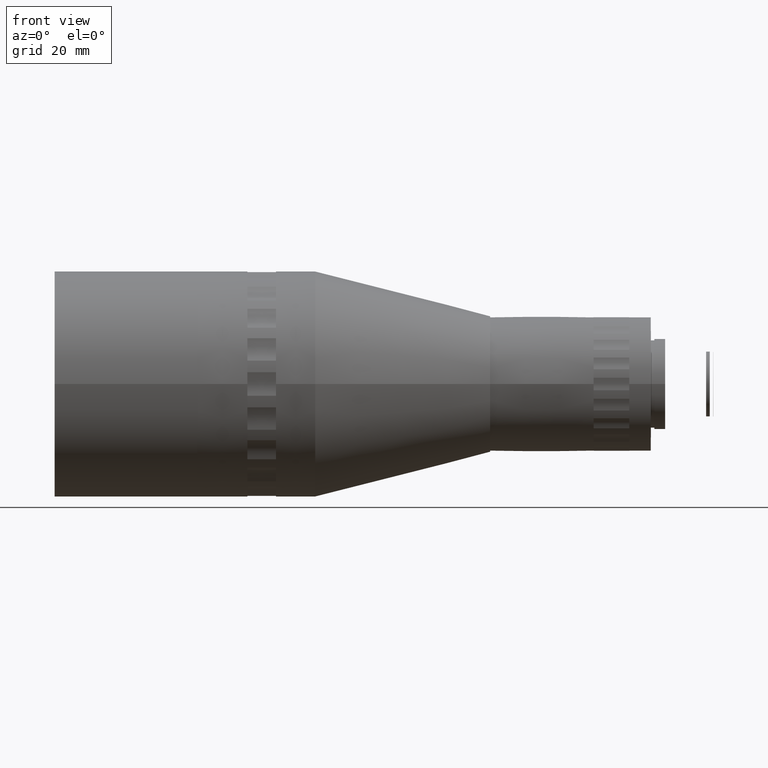
[diagram: clean part render]
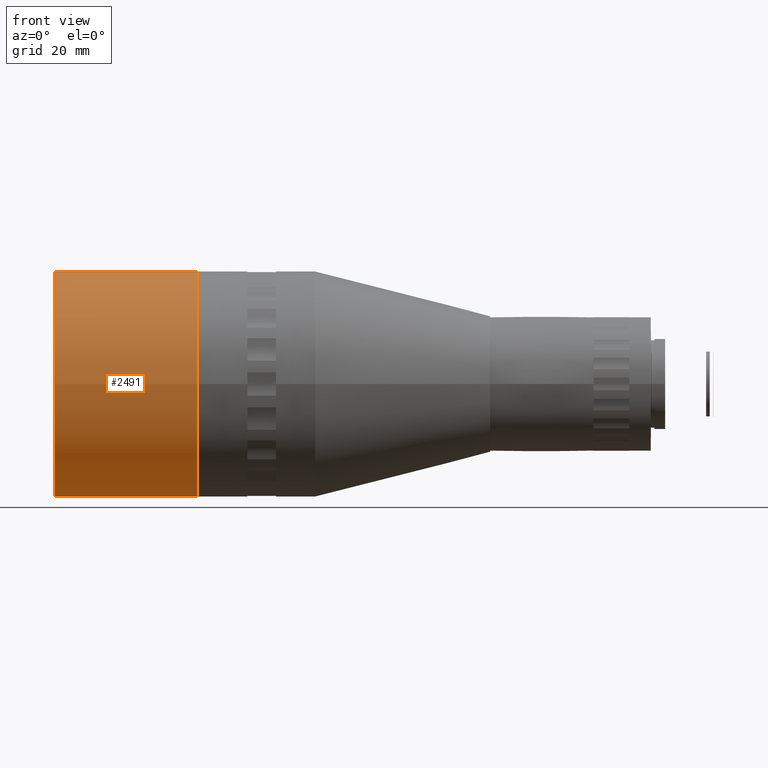
[diagram: same view with one face highlighted and labeled with its STEP entity id]
A machine part, front view. The second image highlights one B-rep face of the part: STEP entity #2491.
In plain terms, the highlighted cylindrical surface (bore or boss wall) has radius 31.5 mm, axis along (-1, -0, -0).
Its self-contained STEP definition (entity closure, byte-faithful):
#166 = ORIENTED_EDGE ( 'NONE', *, *, #3961, .F. ) ;
#196 = AXIS2_PLACEMENT_3D ( 'NONE', #4558, #1413, #2858 ) ;
#353 = DIRECTION ( 'NONE',  ( -1.000000000000000000, -1.226679102604723662E-16, -0.000000000000000000 ) ) ;
#644 = DIRECTION ( 'NONE',  ( -1.000000000000000000, -1.226679102604723662E-16, -0.000000000000000000 ) ) ;
#852 = AXIS2_PLACEMENT_3D ( 'NONE', #2689, #644, #3418 ) ;
#1161 = VERTEX_POINT ( 'NONE', #3648 ) ;
#1262 = CYLINDRICAL_SURFACE ( 'NONE', #852, 31.50000000000000000 ) ;
#1283 = EDGE_LOOP ( 'NONE', ( #1781 ) ) ;
#1413 = DIRECTION ( 'NONE',  ( -1.000000000000000000, -1.226679102604723662E-16, -0.000000000000000000 ) ) ;
#1781 = ORIENTED_EDGE ( 'NONE', *, *, #2164, .T. ) ;
#1962 = CIRCLE ( 'NONE', #2561, 31.49999999999999289 ) ;
#2164 = EDGE_CURVE ( 'NONE', #1161, #1161, #1962, .T. ) ;
#2256 = CARTESIAN_POINT ( 'NONE',  ( -59.36906378044778876, -25.78801287208300153, -0.6039616615827261281 ) ) ;
#2491 = ADVANCED_FACE ( 'NONE', ( #3440, #3813 ), #1262, .T. ) ;
#2561 = AXIS2_PLACEMENT_3D ( 'NONE', #4573, #353, #3223 ) ;
#2689 = CARTESIAN_POINT ( 'NONE',  ( -59.36906378044780297, 5.711987127917000251, -0.6039616615827261281 ) ) ;
#2858 = DIRECTION ( 'NONE',  ( 2.202823461557850341E-16, -1.000000000000000000, 0.000000000000000000 ) ) ;
#3050 = VERTEX_POINT ( 'NONE', #2256 ) ;
#3223 = DIRECTION ( 'NONE',  ( 1.101411730778925417E-16, -1.000000000000000000, 0.000000000000000000 ) ) ;
#3418 = DIRECTION ( 'NONE',  ( 2.202823461557850341E-16, -1.000000000000000000, 0.000000000000000000 ) ) ;
#3440 = FACE_OUTER_BOUND ( 'NONE', #1283, .T. ) ;
#3648 = CARTESIAN_POINT ( 'NONE',  ( -19.36906378044784205, -25.78801287208298731, -0.6039616615827261281 ) ) ;
#3813 = FACE_OUTER_BOUND ( 'NONE', #4196, .T. ) ;
#3961 = EDGE_CURVE ( 'NONE', #3050, #3050, #4228, .T. ) ;
#4196 = EDGE_LOOP ( 'NONE', ( #166 ) ) ;
#4228 = CIRCLE ( 'NONE', #196, 31.50000000000000000 ) ;
#4558 = CARTESIAN_POINT ( 'NONE',  ( -59.36906378044779586, 5.711987127917000251, -0.6039616615827261281 ) ) ;
#4573 = CARTESIAN_POINT ( 'NONE',  ( -19.36906378044784560, 5.711987127917004692, -0.6039616615827261281 ) ) ;